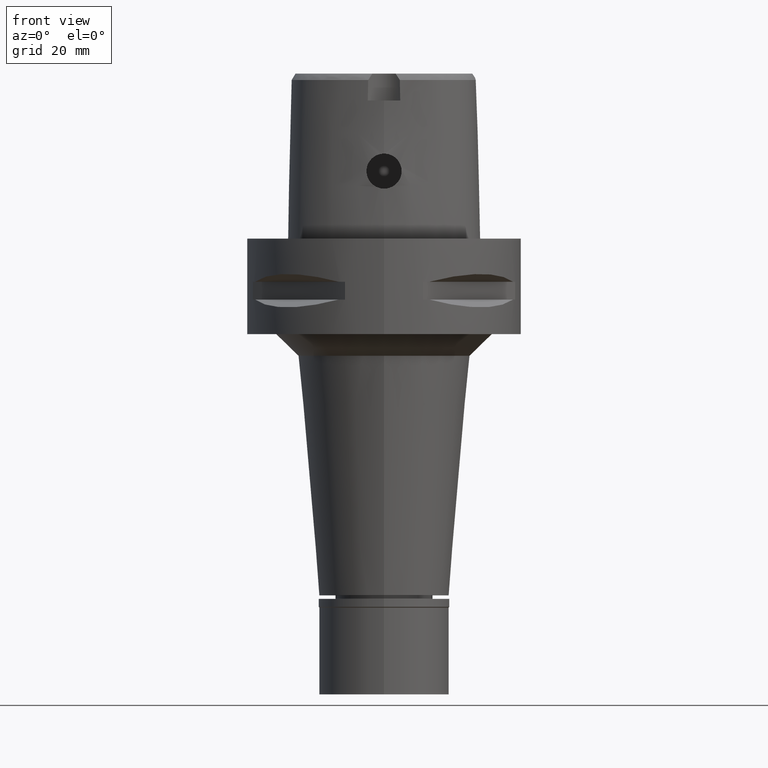
[diagram: clean part render]
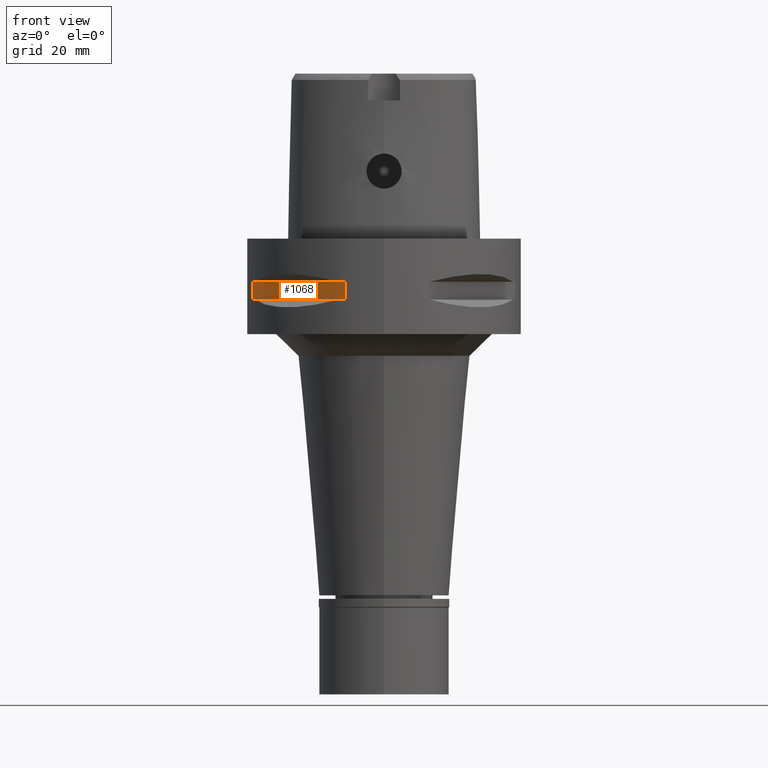
[diagram: same view with one face highlighted and labeled with its STEP entity id]
A machine part, front view. The second image highlights one B-rep face of the part: STEP entity #1068.
In plain terms, the highlighted planar face has unit normal (0.7071, 0.7071, 0).
Its self-contained STEP definition (entity closure, byte-faithful):
#131 = VECTOR ( 'NONE', #636, 1000.000000000000000 ) ;
#139 = VECTOR ( 'NONE', #4001, 1000.000000000000000 ) ;
#158 = LINE ( 'NONE', #4534, #2597 ) ;
#248 = EDGE_CURVE ( 'NONE', #1753, #4398, #4186, .T. ) ;
#347 = ORIENTED_EDGE ( 'NONE', *, *, #1530, .T. ) ;
#624 = EDGE_CURVE ( 'NONE', #1753, #2642, #2079, .T. ) ;
#636 = DIRECTION ( 'NONE',  ( 0.0000000000000000000, 0.0000000000000000000, -1.000000000000000000 ) ) ;
#1068 = ADVANCED_FACE ( 'NONE', ( #2229 ), #4606, .F. ) ;
#1083 = DIRECTION ( 'NONE',  ( 0.0000000000000000000, 0.0000000000000000000, -1.000000000000000000 ) ) ;
#1328 = LINE ( 'NONE', #3676, #139 ) ;
#1441 = CARTESIAN_POINT ( 'NONE',  ( -5.444722215136000187, -33.72899346260000186, -9.950000000000001066 ) ) ;
#1530 = EDGE_CURVE ( 'NONE', #3047, #2642, #1328, .T. ) ;
#1536 = ORIENTED_EDGE ( 'NONE', *, *, #624, .F. ) ;
#1753 = VERTEX_POINT ( 'NONE', #2217 ) ;
#1761 = CARTESIAN_POINT ( 'NONE',  ( -8.981198972017999438, -30.19251670572000279, -9.950000000000001066 ) ) ;
#1856 = CARTESIAN_POINT ( 'NONE',  ( -30.19251670572000279, -8.981198972017999438, -9.950000000000001066 ) ) ;
#2079 = LINE ( 'NONE', #4293, #2111 ) ;
#2111 = VECTOR ( 'NONE', #3577, 1000.000000000000114 ) ;
#2217 = CARTESIAN_POINT ( 'NONE',  ( -30.19251670572000279, -8.981198972019999616, -9.950000000000001066 ) ) ;
#2229 = FACE_OUTER_BOUND ( 'NONE', #2767, .T. ) ;
#2597 = VECTOR ( 'NONE', #4872, 1000.000000000000114 ) ;
#2617 = EDGE_CURVE ( 'NONE', #4398, #3047, #158, .T. ) ;
#2642 = VERTEX_POINT ( 'NONE', #1761 ) ;
#2767 = EDGE_LOOP ( 'NONE', ( #1536, #4868, #3933, #347 ) ) ;
#3047 = VERTEX_POINT ( 'NONE', #4172 ) ;
#3577 = DIRECTION ( 'NONE',  ( 0.7071067811865474617, -0.7071067811865474617, 0.0000000000000000000 ) ) ;
#3676 = CARTESIAN_POINT ( 'NONE',  ( -8.981198972017999438, -30.19251670572000279, -14.05000000000000071 ) ) ;
#3933 = ORIENTED_EDGE ( 'NONE', *, *, #2617, .T. ) ;
#4001 = DIRECTION ( 'NONE',  ( 0.0000000000000000000, 0.0000000000000000000, 1.000000000000000000 ) ) ;
#4172 = CARTESIAN_POINT ( 'NONE',  ( -8.981198972019999616, -30.19251670572000279, -14.05000000000000071 ) ) ;
#4176 = DIRECTION ( 'NONE',  ( 0.7071067811865475727, 0.7071067811865475727, 0.0000000000000000000 ) ) ;
#4186 = LINE ( 'NONE', #1856, #131 ) ;
#4293 = CARTESIAN_POINT ( 'NONE',  ( -30.19251670572000279, -8.981198972017999438, -9.950000000000001066 ) ) ;
#4389 = AXIS2_PLACEMENT_3D ( 'NONE', #1441, #4176, #1083 ) ;
#4398 = VERTEX_POINT ( 'NONE', #4678 ) ;
#4534 = CARTESIAN_POINT ( 'NONE',  ( -30.19251670572000279, -8.981198972017999438, -14.05000000000000071 ) ) ;
#4606 = PLANE ( 'NONE',  #4389 ) ;
#4678 = CARTESIAN_POINT ( 'NONE',  ( -30.19251670572000279, -8.981198972017999438, -14.05000000000000071 ) ) ;
#4868 = ORIENTED_EDGE ( 'NONE', *, *, #248, .T. ) ;
#4872 = DIRECTION ( 'NONE',  ( 0.7071067811865474617, -0.7071067811865474617, 0.0000000000000000000 ) ) ;